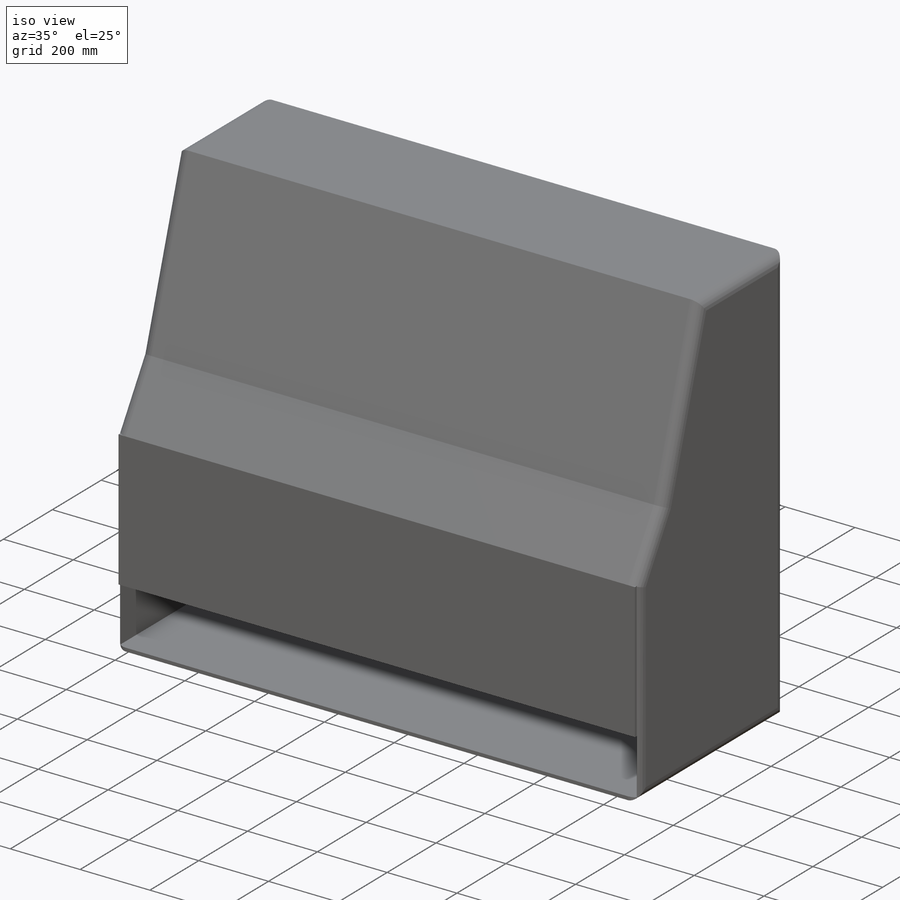
[diagram: iso view]
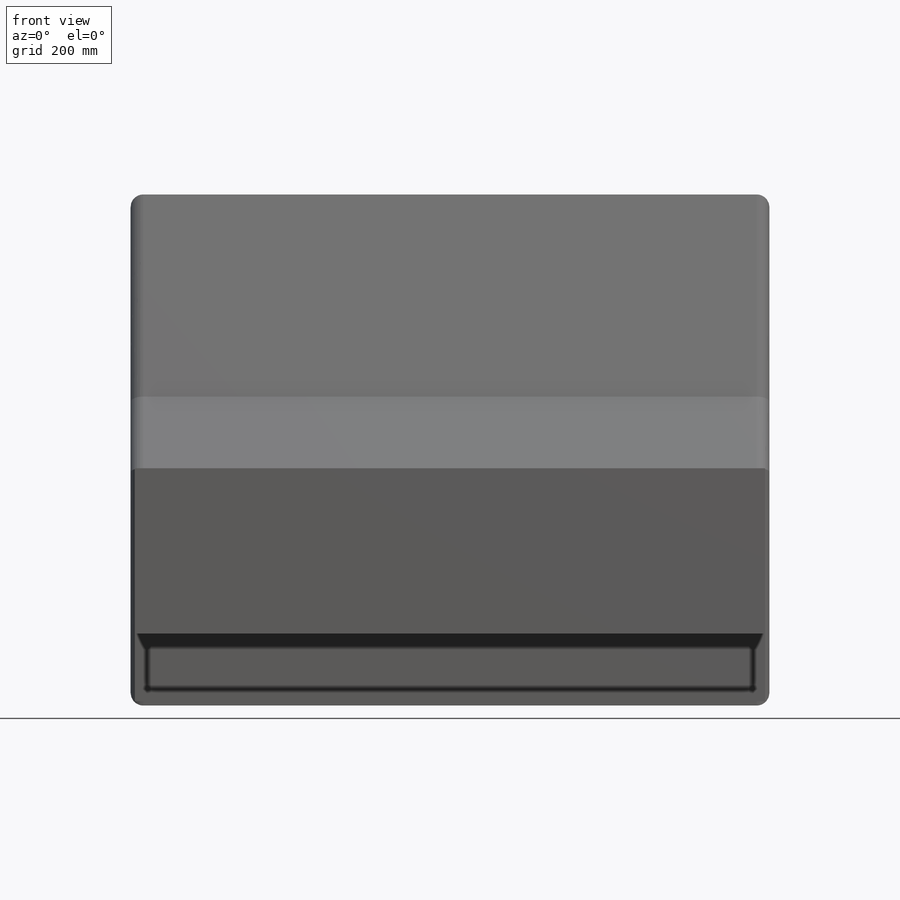
[diagram: front view]
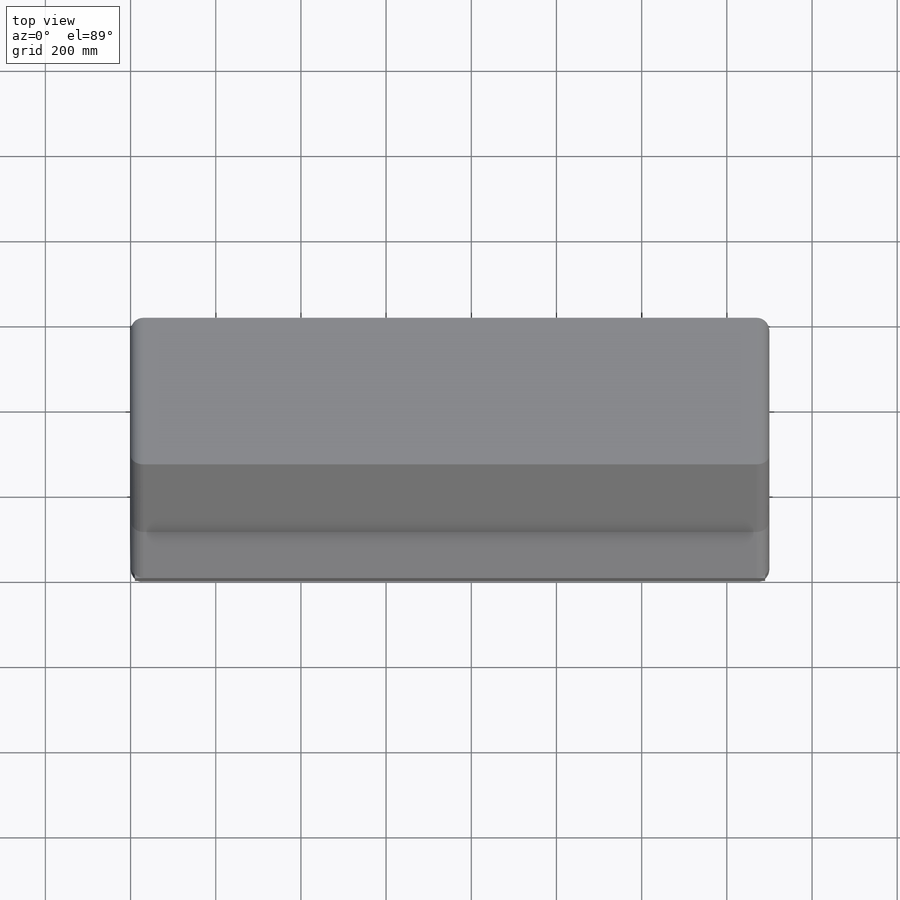
[diagram: top view]
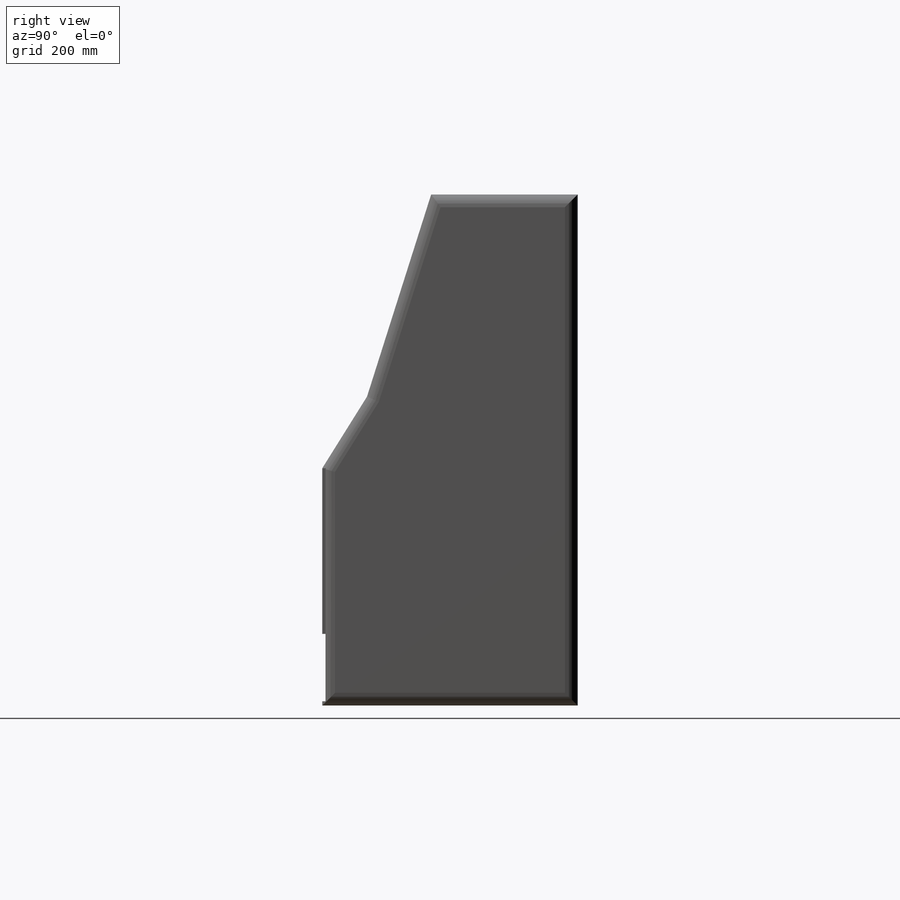
[diagram: right view]
SOLIDWORKS PART (.sldprt)
format: sldprt  version: not decoded by parser v0  size: 286,720 bytes
history: native  units: mm
features: sketch x5, extrude x4, plane x3, material x1, shell x1, fillet x1, cut_extrude x1 (+11 scaffold rows collapsed)
feature tree (27):
  scaffold x11  (default folders/planes/origin — collapsed)
  material  "Material <not specified>"
  sketch  "Sketch2"  dims[D1=1500.0mm]
  extrude  "Boss-Extrude1"  Depth=50mm
  plane  "Plane1"  Offset=0mm
  plane  "Plane6"  Offset=1000mm
  sketch  "Sketch9"  dims[D1=300.0mm]
  extrude  "Boss-Extrude8"  Depth=1500mm
  shell  "Shell1"  Thickness=10mm
  fillet  "Fillet4"  Radius=30mm
  plane  "Plane7"  Offset=0mm
  sketch  "Sketch10"
  extrude  "Boss-Extrude9"  Depth=10mm
  sketch  "Sketch11"  dims[D1=50.0mm]
  extrude  "Boss-Extrude10"  Depth=700mm
  sketch  "Sketch12"
  cut_extrude  "Cut-Extrude1"  Depth=20000mm
decode coverage: 10 of 12 modeling features carry decoded parameters
note: suppression state not decoded; provenance and decode notes live in map.json
